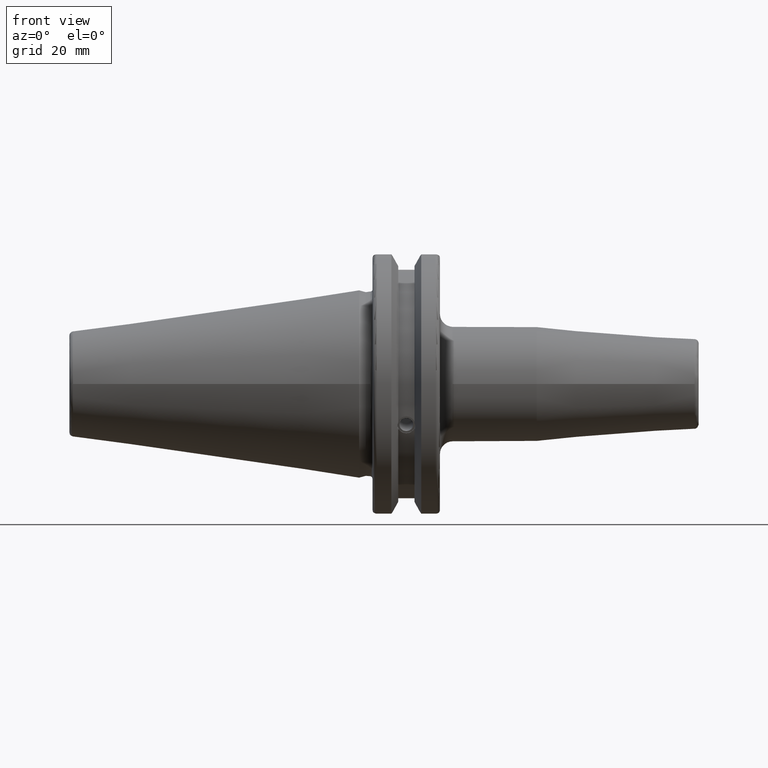
[diagram: clean part render]
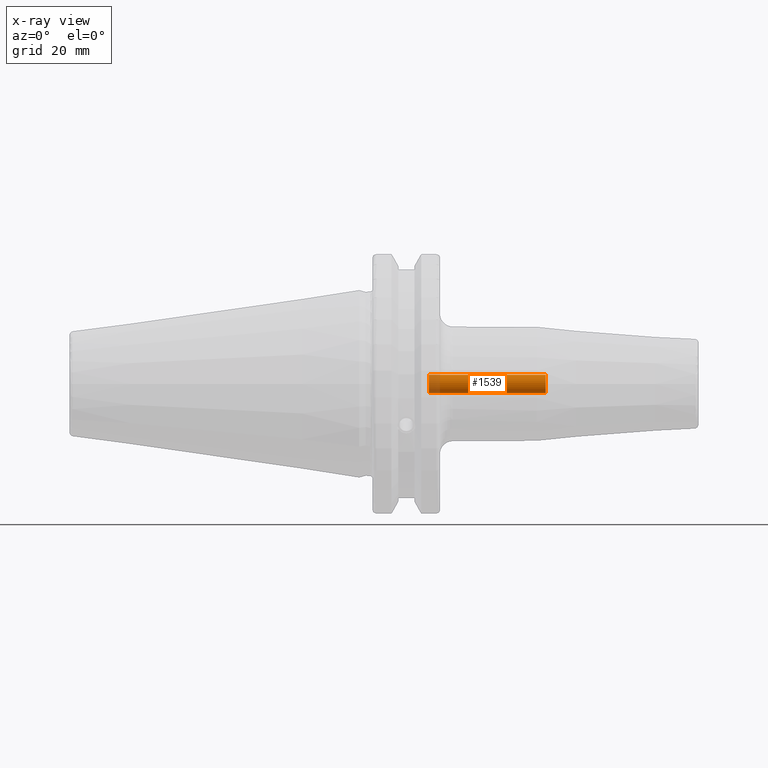
[diagram: x-ray — body ghosted, one internal face saturated and labeled with its STEP entity id]
A machine part, front view, then the same camera in x-ray: the body is ghosted and one INTERNAL B-rep face — a face not visible from any outside direction — is saturated and labeled: STEP entity #1539.
In plain terms, the highlighted cylindrical surface (bore or boss wall) has radius 2.15 mm, axis along (1, 0, 0).
Its self-contained STEP definition (entity closure, byte-faithful):
#149=CYLINDRICAL_SURFACE('',#1672,2.15);
#187=FACE_OUTER_BOUND('',#281,.T.);
#281=EDGE_LOOP('',(#1098,#1099,#1100,#1101,#1102));
#390=LINE('',#2379,#486);
#486=VECTOR('',#1913,2.15);
#583=CIRCLE('',#1673,2.15);
#584=CIRCLE('',#1674,2.15);
#585=CIRCLE('',#1675,2.15);
#670=VERTEX_POINT('',#2376);
#671=VERTEX_POINT('',#2378);
#672=VERTEX_POINT('',#2380);
#836=EDGE_CURVE('',#670,#670,#583,.T.);
#837=EDGE_CURVE('',#670,#671,#390,.T.);
#838=EDGE_CURVE('',#672,#671,#584,.T.);
#839=EDGE_CURVE('',#671,#672,#585,.T.);
#1098=ORIENTED_EDGE('',*,*,#836,.F.);
#1099=ORIENTED_EDGE('',*,*,#837,.T.);
#1100=ORIENTED_EDGE('',*,*,#838,.F.);
#1101=ORIENTED_EDGE('',*,*,#839,.F.);
#1102=ORIENTED_EDGE('',*,*,#837,.F.);
#1539=ADVANCED_FACE('',(#187),#149,.F.);
#1672=AXIS2_PLACEMENT_3D('',#2375,#1909,#1910);
#1673=AXIS2_PLACEMENT_3D('',#2377,#1911,#1912);
#1674=AXIS2_PLACEMENT_3D('',#2381,#1914,#1915);
#1675=AXIS2_PLACEMENT_3D('',#2382,#1916,#1917);
#1909=DIRECTION('center_axis',(1.,0.,0.));
#1910=DIRECTION('ref_axis',(0.,0.,-1.));
#1911=DIRECTION('center_axis',(-1.,0.,0.));
#1912=DIRECTION('ref_axis',(0.,0.,-1.));
#1913=DIRECTION('',(-1.,0.,0.));
#1914=DIRECTION('center_axis',(1.,0.,0.));
#1915=DIRECTION('ref_axis',(0.,0.,-1.));
#1916=DIRECTION('center_axis',(1.,0.,0.));
#1917=DIRECTION('ref_axis',(0.,0.,-1.));
#2375=CARTESIAN_POINT('Origin',(-128.459652382535,0.,0.));
#2376=CARTESIAN_POINT('',(44.,-2.63299061816681E-16,2.15));
#2377=CARTESIAN_POINT('Origin',(44.,0.,0.));
#2378=CARTESIAN_POINT('',(16.4796497061803,-2.63299061816681E-16,2.15));
#2379=CARTESIAN_POINT('',(-128.459652382535,-2.63299061816681E-16,2.15));
#2380=CARTESIAN_POINT('',(16.4796497061803,-2.63299061816681E-16,-2.15));
#2381=CARTESIAN_POINT('Origin',(16.4796497061803,0.,0.));
#2382=CARTESIAN_POINT('Origin',(16.4796497061803,0.,0.));